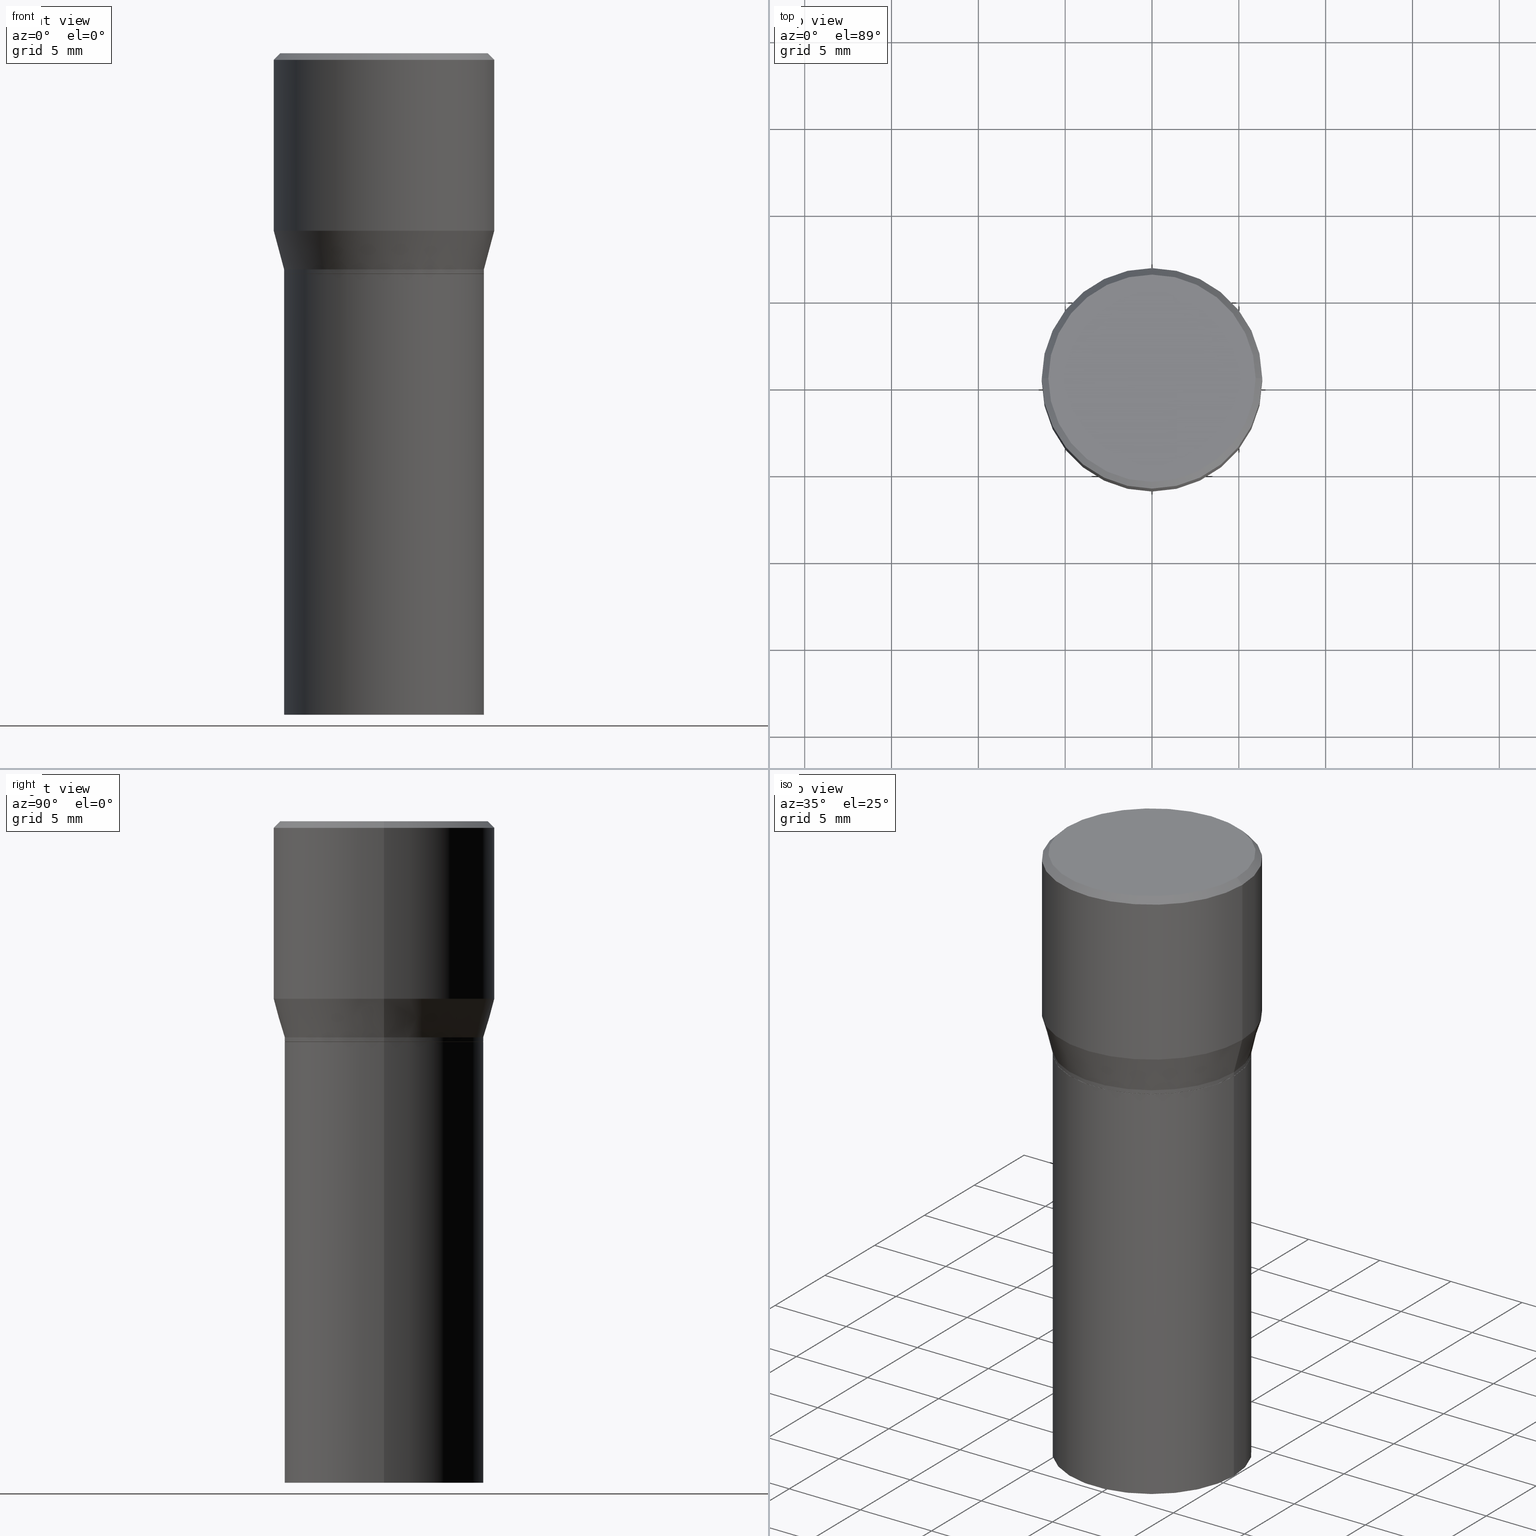
[diagram: canonical four-view strip — front | top / right | iso, engineering-drawing reading convention]
A machine part, canonical four-view strip (front | top / right | iso — engineering-drawing reading convention). The complete STEP part file that produces these views, byte-faithful:
ISO-10303-21;
HEADER;
FILE_DESCRIPTION (( 'STEP AP203' ),
    '1' );
FILE_NAME ('30357.STEP',
    '2024-03-13T16:08:52',
    ( '' ),
    ( '' ),
    'SwSTEP 2.0',
    'SolidWorks 2023',
    '' );
FILE_SCHEMA (( 'CONFIG_CONTROL_DESIGN' ));
ENDSEC;

DATA;
#1 = CARTESIAN_POINT ( 'NONE',  ( 1.198279715030717173E-29, -1.710825856033141537E-15, -0.4900000000000001021 ) ) ;
#2 = ORIENTED_EDGE ( 'NONE', *, *, #431, .F. ) ;
#3 = FACE_OUTER_BOUND ( 'NONE', #372, .T. ) ;
#4 = CARTESIAN_POINT ( 'NONE',  ( -0.2500000000000000000, 1.776356839400250465E-15, -1.229733772563726445E-29 ) ) ;
#5 = DIRECTION ( 'NONE',  ( 1.000000000000000000, -6.982962677686266711E-15, 0.000000000000000000 ) ) ;
#6 = DIRECTION ( 'NONE',  ( -1.000000000000000000, 6.982962677686265922E-15, -4.876176775795935793E-29 ) ) ;
#7 = APPLICATION_PROTOCOL_DEFINITION ( 'international standard', 'config_control_design', 1994, #17 ) ;
#8 = AXIS2_PLACEMENT_3D ( 'NONE', #211, #246, #150 ) ;
#9 = DIRECTION ( 'NONE',  ( 1.000000000000000000, -6.982962677686266711E-15, 4.876176775795935793E-29 ) ) ;
#10 = CIRCLE ( 'NONE', #154, 0.2265500000000000014 ) ;
#11 = VECTOR ( 'NONE', #360, 39.37007874015748143 ) ;
#12 = EDGE_CURVE ( 'NONE', #85, #419, #10, .T. ) ;
#13 =( LENGTH_UNIT ( ) NAMED_UNIT ( * ) SI_UNIT ( $, .METRE. ) );
#14 = ORIENTED_EDGE ( 'NONE', *, *, #337, .F. ) ;
#15 = ORIENTED_EDGE ( 'NONE', *, *, #183, .T. ) ;
#16 = AXIS2_PLACEMENT_3D ( 'NONE', #111, #72, #177 ) ;
#17 = APPLICATION_CONTEXT ( 'configuration controlled 3d designs of mechanical parts and assemblies' ) ;
#18 = DIRECTION ( 'NONE',  ( 1.000000000000000000, -6.982962677686267499E-15, 0.000000000000000000 ) ) ;
#19 = ORIENTED_EDGE ( 'NONE', *, *, #442, .T. ) ;
#20 = DATE_AND_TIME ( #129, #449 ) ;
#21 = EDGE_LOOP ( 'NONE', ( #230, #267 ) ) ;
#22 = VECTOR ( 'NONE', #348, 39.37007874015748143 ) ;
#23 = EDGE_LOOP ( 'NONE', ( #50, #19, #336, #2 ) ) ;
#24 = APPROVAL ( #157, 'UNSPECIFIED' ) ;
#25 = ADVANCED_FACE ( 'NONE', ( #351 ), #126, .T. ) ;
#26 = CARTESIAN_POINT ( 'NONE',  ( 3.668203209277705088E-31, -5.237222008264718399E-17, -0.01499999999999999944 ) ) ;
#27 = ORIENTED_EDGE ( 'NONE', *, *, #183, .F. ) ;
#28 = AXIS2_PLACEMENT_3D ( 'NONE', #317, #424, #279 ) ;
#29 = CARTESIAN_POINT ( 'NONE',  ( 0.000000000000000000, 0.000000000000000000, 0.000000000000000000 ) ) ;
#30 = LINE ( 'NONE', #205, #326 ) ;
#31 = DIRECTION ( 'NONE',  ( 1.000000000000000000, -6.982962677686265922E-15, 0.000000000000000000 ) ) ;
#32 = CARTESIAN_POINT ( 'NONE',  ( 9.842606206466859638E-30, -1.405263310189985589E-15, -0.4024834085625100810 ) ) ;
#33 = DIRECTION ( 'NONE',  ( -2.445468806185136597E-29, 3.491481338843145583E-15, 1.000000000000000000 ) ) ;
#34 = MANIFOLD_SOLID_BREP ( 'Body-Move/Copy2[2]', #65 ) ;
#35 = FACE_OUTER_BOUND ( 'NONE', #283, .T. ) ;
#36 = DIRECTION ( 'NONE',  ( 1.000000000000000000, -6.982962677686266711E-15, 0.000000000000000000 ) ) ;
#37 = CARTESIAN_POINT ( 'NONE',  ( 1.198279715030717173E-29, -1.710825856033141537E-15, -0.4900000000000001021 ) ) ;
#38 = AXIS2_PLACEMENT_3D ( 'NONE', #401, #118, #49 ) ;
#39 = CARTESIAN_POINT ( 'NONE',  ( 0.000000000000000000, 0.000000000000000000, 0.000000000000000000 ) ) ;
#40 = DIRECTION ( 'NONE',  ( 1.000000000000000000, -6.982962677686265922E-15, 0.000000000000000000 ) ) ;
#41 = PERSON ( 'UNSPECIFIED', 'UNSPECIFIED', 'UNSPECIFIED', ('UNSPECIFIED'), ('UNSPECIFIED'), ('UNSPECIFIED') ) ;
#42 =( CONVERSION_BASED_UNIT ( 'INCH', #439 ) LENGTH_UNIT ( ) NAMED_UNIT ( #454 ) );
#43 = CARTESIAN_POINT ( 'NONE',  ( -0.2260500000000000009, -1.395588152358667583E-16, -0.5000000000000001110 ) ) ;
#44 = DIRECTION ( 'NONE',  ( 0.2588190451025214611, 1.565188264969621573E-15, 0.9659258262890682012 ) ) ;
#45 = ADVANCED_FACE ( 'NONE', ( #168 ), #253, .T. ) ;
#46 = VERTEX_POINT ( 'NONE', #277 ) ;
#47 = EDGE_CURVE ( 'NONE', #194, #125, #282, .T. ) ;
#48 = VECTOR ( 'NONE', #75, 39.37007874015748143 ) ;
#49 = DIRECTION ( 'NONE',  ( 1.000000000000000000, 0.000000000000000000, 0.000000000000000000 ) ) ;
#50 = ORIENTED_EDGE ( 'NONE', *, *, #101, .F. ) ;
#51 = VERTEX_POINT ( 'NONE', #258 ) ;
#52 = VECTOR ( 'NONE', #104, 39.37007874015748143 ) ;
#53 = ADVANCED_FACE ( 'NONE', ( #289 ), #255, .T. ) ;
#54 = AXIS2_PLACEMENT_3D ( 'NONE', #26, #164, #380 ) ;
#55 = PERSON_AND_ORGANIZATION_ROLE ( 'creator' ) ;
#56 = AXIS2_PLACEMENT_3D ( 'NONE', #229, #223, #432 ) ;
#57 = ORIENTED_EDGE ( 'NONE', *, *, #93, .T. ) ;
#58 = ADVANCED_FACE ( 'NONE', ( #341 ), #306, .T. ) ;
#59 = DIRECTION ( 'NONE',  ( -2.438088387897960049E-29, 3.491481338843145188E-15, 1.000000000000000000 ) ) ;
#60 = CARTESIAN_POINT ( 'NONE',  ( 0.2265499999999999736, -3.292816050662964671E-15, -0.4900000000000001021 ) ) ;
#61 = AXIS2_PLACEMENT_3D ( 'NONE', #354, #389, #5 ) ;
#62 = CC_DESIGN_PERSON_AND_ORGANIZATION_ASSIGNMENT ( #328, #364, ( #305 ) ) ;
#63 = CARTESIAN_POINT ( 'NONE',  ( 0.2349999999999999867, -1.689856874500919833E-15, 1.568636843340994368E-16 ) ) ;
#64 = VERTEX_POINT ( 'NONE', #60 ) ;
#65 = CLOSED_SHELL ( 'NONE', ( #82, #25, #188, #269, #45, #376, #191, #58, #162, #227, #175, #413 ) ) ;
#66 = LINE ( 'NONE', #285, #52 ) ;
#67 = ORIENTED_EDGE ( 'NONE', *, *, #431, .T. ) ;
#68 = AXIS2_PLACEMENT_3D ( 'NONE', #77, #222, #6 ) ;
#69 = DIRECTION ( 'NONE',  ( -2.445468806185136597E-29, 3.491481338843145583E-15, 1.000000000000000000 ) ) ;
#70 = LINE ( 'NONE', #417, #22 ) ;
#71 = ORIENTED_EDGE ( 'NONE', *, *, #113, .T. ) ;
#72 = DIRECTION ( 'NONE',  ( 2.445468806185136597E-29, -3.491481338843145583E-15, -1.000000000000000000 ) ) ;
#73 = CARTESIAN_POINT ( 'NONE',  ( -0.2265500000000000014, -1.342603608876448985E-16, -0.4995000000000001661 ) ) ;
#74 = AXIS2_PLACEMENT_3D ( 'NONE', #382, #288, #384 ) ;
#75 = DIRECTION ( 'NONE',  ( -2.445468806185136877E-29, 3.491481338843145188E-15, 1.000000000000000000 ) ) ;
#76 = DIRECTION ( 'NONE',  ( 1.000000000000000000, -6.982962677686265922E-15, 0.000000000000000000 ) ) ;
#77 = CARTESIAN_POINT ( 'NONE',  ( 1.640996229256272519E-15, 0.2349999999999999867, -7.420662724610952803E-16 ) ) ;
#78 = CALENDAR_DATE ( 2024, 13, 3 ) ;
#79 = EDGE_CURVE ( 'NONE', #273, #64, #30, .T. ) ;
#80 = CARTESIAN_POINT ( 'NONE',  ( -0.2265500000000000014, 1.609734567864506981E-15, -1.114384744697248863E-29 ) ) ;
#81 = COORDINATED_UNIVERSAL_TIME_OFFSET ( 5, 0, .BEHIND. ) ;
#82 = ADVANCED_FACE ( 'NONE', ( #460 ), #142, .T. ) ;
#83 = LOCAL_TIME ( 12, 8, 52.00000000000000000, #81 ) ;
#84 = DIRECTION ( 'NONE',  ( -2.445468806185136597E-29, 3.491481338843145583E-15, 1.000000000000000000 ) ) ;
#85 = VERTEX_POINT ( 'NONE', #422 ) ;
#86 = COORDINATED_UNIVERSAL_TIME_OFFSET ( 5, 0, .BEHIND. ) ;
#87 = DATE_AND_TIME ( #307, #377 ) ;
#88 = DIRECTION ( 'NONE',  ( 1.000000000000000000, -6.982962677686265922E-15, 0.000000000000000000 ) ) ;
#89 = EDGE_LOOP ( 'NONE', ( #179, #160, #342, #318 ) ) ;
#90 = AXIS2_PLACEMENT_3D ( 'NONE', #297, #366, #76 ) ;
#91 = AXIS2_PLACEMENT_3D ( 'NONE', #350, #387, #204 ) ;
#92 = SHAPE_DEFINITION_REPRESENTATION ( #245, #203 ) ;
#93 = EDGE_CURVE ( 'NONE', #215, #194, #434, .T. ) ;
#94 = ORIENTED_EDGE ( 'NONE', *, *, #314, .F. ) ;
#95 = EDGE_CURVE ( 'NONE', #411, #330, #294, .T. ) ;
#96 = AXIS2_PLACEMENT_3D ( 'NONE', #221, #84, #18 ) ;
#97 = PERSON_AND_ORGANIZATION ( #41, #383 ) ;
#98 = AXIS2_PLACEMENT_3D ( 'NONE', #1, #286, #355 ) ;
#99 = DIRECTION ( 'NONE',  ( -2.438088387897960049E-29, 3.491481338843145188E-15, 1.000000000000000000 ) ) ;
#100 = EDGE_LOOP ( 'NONE', ( #236, #339, #301, #233 ) ) ;
#101 = EDGE_CURVE ( 'NONE', #238, #419, #428, .T. ) ;
#102 = CARTESIAN_POINT ( 'NONE',  ( 3.668203209277704895E-29, -5.237222008264718177E-15, -1.500000000000000222 ) ) ;
#103 = ORIENTED_EDGE ( 'NONE', *, *, #47, .T. ) ;
#104 = DIRECTION ( 'NONE',  ( -0.7071067811865441310, 2.468850131082221167E-15, -0.7071067811865509034 ) ) ;
#105 = ORIENTED_EDGE ( 'NONE', *, *, #220, .F. ) ;
#106 = CARTESIAN_POINT ( 'NONE',  ( 9.842606206466859638E-30, -1.405263310189985589E-15, -0.4024834085625100810 ) ) ;
#107 = DIRECTION ( 'NONE',  ( -2.445468806185136597E-29, 3.491481338843145583E-15, 1.000000000000000000 ) ) ;
#108 = CARTESIAN_POINT ( 'NONE',  ( 1.222734403092568719E-29, -1.745740669421573186E-15, -0.5000000000000001110 ) ) ;
#109 = CC_DESIGN_PERSON_AND_ORGANIZATION_ASSIGNMENT ( #268, #239, ( #397 ) ) ;
#110 = CARTESIAN_POINT ( 'NONE',  ( 0.2500000000000000000, -1.745740669421566678E-15, 1.219044193948983948E-29 ) ) ;
#111 = CARTESIAN_POINT ( 'NONE',  ( 3.668203209277705088E-31, -5.237222008264718399E-17, -0.01499999999999999944 ) ) ;
#112 = CYLINDRICAL_SURFACE ( 'NONE', #331, 0.2265500000000000014 ) ;
#113 = EDGE_CURVE ( 'NONE', #330, #215, #256, .T. ) ;
#114 = UNCERTAINTY_MEASURE_WITH_UNIT (LENGTH_MEASURE( 1.000000000000000082E-05 ), #42, 'distance_accuracy_value', 'NONE');
#115 = DATE_AND_TIME ( #395, #83 ) ;
#116 = AXIS2_PLACEMENT_3D ( 'NONE', #214, #59, #178 ) ;
#117 = FACE_OUTER_BOUND ( 'NONE', #209, .T. ) ;
#118 = DIRECTION ( 'NONE',  ( 0.000000000000000000, 0.000000000000000000, 1.000000000000000000 ) ) ;
#119 = CALENDAR_DATE ( 2024, 13, 3 ) ;
#120 = DIRECTION ( 'NONE',  ( -0.7071067811865715536, 7.493145998870439357E-15, 0.7071067811865232589 ) ) ;
#121 = AXIS2_PLACEMENT_3D ( 'NONE', #139, #378, #163 ) ;
#122 = EDGE_LOOP ( 'NONE', ( #197, #71, #105, #130 ) ) ;
#123 = APPROVAL_DATE_TIME ( #115, #436 ) ;
#124 = PRODUCT_RELATED_PRODUCT_CATEGORY ( 'detail', '', ( #347 ) ) ;
#125 = VERTEX_POINT ( 'NONE', #332 ) ;
#126 = CONICAL_SURFACE ( 'NONE', #131, 0.2260500000000000009, 0.7853981633974824739 ) ;
#127 = VERTEX_POINT ( 'NONE', #299 ) ;
#128 = EDGE_CURVE ( 'NONE', #310, #190, #393, .T. ) ;
#129 = CALENDAR_DATE ( 2024, 13, 3 ) ;
#130 = ORIENTED_EDGE ( 'NONE', *, *, #79, .F. ) ;
#131 = AXIS2_PLACEMENT_3D ( 'NONE', #108, #33, #36 ) ;
#132 = CIRCLE ( 'NONE', #386, 0.2500000000000000000 ) ;
#133 = EDGE_CURVE ( 'NONE', #215, #64, #452, .T. ) ;
#134 = PERSON_AND_ORGANIZATION_ROLE ( 'classification_officer' ) ;
#135 = CIRCLE ( 'NONE', #176, 0.2265500000000000014 ) ;
#136 = DIRECTION ( 'NONE',  ( -2.445468806185136597E-29, 3.491481338843145583E-15, 1.000000000000000000 ) ) ;
#137 = EDGE_LOOP ( 'NONE', ( #445, #212, #402, #14 ) ) ;
#138 = EDGE_CURVE ( 'NONE', #190, #125, #132, .T. ) ;
#139 = CARTESIAN_POINT ( 'NONE',  ( 1.222734403092568719E-29, -1.745740669421573186E-15, -0.5000000000000001110 ) ) ;
#140 = CARTESIAN_POINT ( 'NONE',  ( 1.222734403092568719E-29, -1.745740669421573186E-15, -0.5000000000000001110 ) ) ;
#141 = FACE_OUTER_BOUND ( 'NONE', #137, .T. ) ;
#142 = CYLINDRICAL_SURFACE ( 'NONE', #242, 0.2265500000000000014 ) ;
#143 = FACE_OUTER_BOUND ( 'NONE', #321, .T. ) ;
#144 = ORIENTED_EDGE ( 'NONE', *, *, #128, .T. ) ;
#145 = LOCAL_TIME ( 12, 8, 52.00000000000000000, #86 ) ;
#146 = PLANE ( 'NONE',  #116 ) ;
#147 = EDGE_LOOP ( 'NONE', ( #202, #165, #270, #156 ) ) ;
#148 = EDGE_CURVE ( 'NONE', #46, #190, #334, .T. ) ;
#149 = CYLINDRICAL_SURFACE ( 'NONE', #448, 0.2265500000000000014 ) ;
#150 = DIRECTION ( 'NONE',  ( 1.000000000000000000, -6.982962677686267499E-15, 4.878549297894958458E-29 ) ) ;
#151 = CIRCLE ( 'NONE', #61, 0.2500000000000000000 ) ;
#152 = APPROVAL_ROLE ( '' ) ;
#153 = EDGE_CURVE ( 'NONE', #127, #273, #219, .T. ) ;
#154 = AXIS2_PLACEMENT_3D ( 'NONE', #458, #349, #247 ) ;
#155 = PERSON_AND_ORGANIZATION ( #41, #383 ) ;
#156 = ORIENTED_EDGE ( 'NONE', *, *, #153, .F. ) ;
#157 = APPROVAL_STATUS ( 'not_yet_approved' ) ;
#158 = ORIENTED_EDGE ( 'NONE', *, *, #423, .T. ) ;
#159 = VECTOR ( 'NONE', #192, 39.37007874015748143 ) ;
#160 = ORIENTED_EDGE ( 'NONE', *, *, #337, .T. ) ;
#161 = CIRCLE ( 'NONE', #216, 0.2265500000000000014 ) ;
#162 = ADVANCED_FACE ( 'NONE', ( #117 ), #261, .F. ) ;
#163 = DIRECTION ( 'NONE',  ( 1.000000000000000000, -6.982962677686266711E-15, 0.000000000000000000 ) ) ;
#164 = DIRECTION ( 'NONE',  ( 2.445468806185136597E-29, -3.491481338843145583E-15, -1.000000000000000000 ) ) ;
#165 = ORIENTED_EDGE ( 'NONE', *, *, #95, .T. ) ;
#166 = CIRCLE ( 'NONE', #296, 0.2265499999999999736 ) ;
#167 = FACE_OUTER_BOUND ( 'NONE', #21, .T. ) ;
#168 = FACE_OUTER_BOUND ( 'NONE', #385, .T. ) ;
#169 = ORIENTED_EDGE ( 'NONE', *, *, #213, .F. ) ;
#170 = PLANE ( 'NONE',  #421 ) ;
#171 = DIRECTION ( 'NONE',  ( -2.445468806185136597E-29, 3.491481338843145583E-15, 1.000000000000000000 ) ) ;
#172 = DIRECTION ( 'NONE',  ( -2.445468806185136597E-29, 3.491481338843145583E-15, 1.000000000000000000 ) ) ;
#173 = CARTESIAN_POINT ( 'NONE',  ( 1.221511668689476057E-29, -1.743994928752151682E-15, -0.4995000000000001661 ) ) ;
#174 = ORIENTED_EDGE ( 'NONE', *, *, #95, .F. ) ;
#175 = ADVANCED_FACE ( 'NONE', ( #396 ), #327, .T. ) ;
#176 = AXIS2_PLACEMENT_3D ( 'NONE', #173, #107, #344 ) ;
#177 = DIRECTION ( 'NONE',  ( -1.000000000000000000, 6.982962677686266711E-15, 0.000000000000000000 ) ) ;
#178 = DIRECTION ( 'NONE',  ( 1.000000000000000000, -6.982962677686265922E-15, 4.876176775795935793E-29 ) ) ;
#179 = ORIENTED_EDGE ( 'NONE', *, *, #47, .F. ) ;
#180 = DIRECTION ( 'NONE',  ( -2.445468806185136597E-29, 3.491481338843145583E-15, 1.000000000000000000 ) ) ;
#181 = CARTESIAN_POINT ( 'NONE',  ( 0.2260500000000000009, -3.324239382712553708E-15, -0.5000000000000001110 ) ) ;
#182 = MANIFOLD_SOLID_BREP ( 'Body-Move/Copy2[1]', #400 ) ;
#183 = EDGE_CURVE ( 'NONE', #46, #194, #210, .T. ) ;
#184 = CIRCLE ( 'NONE', #121, 0.2260500000000000009 ) ;
#185 =( NAMED_UNIT ( * ) SI_UNIT ( $, .STERADIAN. ) SOLID_ANGLE_UNIT ( ) );
#186 = VECTOR ( 'NONE', #391, 39.37007874015748143 ) ;
#187 = ORIENTED_EDGE ( 'NONE', *, *, #213, .T. ) ;
#188 = ADVANCED_FACE ( 'NONE', ( #353 ), #365, .T. ) ;
#189 = APPLICATION_PROTOCOL_DEFINITION ( 'international standard', 'config_control_design', 1994, #278 ) ;
#190 = VERTEX_POINT ( 'NONE', #207 ) ;
#191 = ADVANCED_FACE ( 'NONE', ( #217 ), #358, .T. ) ;
#192 = DIRECTION ( 'NONE',  ( -2.445468806185136877E-29, 3.491481338843145188E-15, 1.000000000000000000 ) ) ;
#193 = CIRCLE ( 'NONE', #284, 0.2500000000000000000 ) ;
#194 = VERTEX_POINT ( 'NONE', #249 ) ;
#195 = ORIENTED_EDGE ( 'NONE', *, *, #79, .T. ) ;
#196 = PERSON_AND_ORGANIZATION ( #41, #383 ) ;
#197 = ORIENTED_EDGE ( 'NONE', *, *, #394, .T. ) ;
#198 = APPROVAL_PERSON_ORGANIZATION ( #155, #272, #435 ) ;
#199 = ORIENTED_EDGE ( 'NONE', *, *, #259, .T. ) ;
#200 = CC_DESIGN_DATE_AND_TIME_ASSIGNMENT ( #87, #241, ( #319 ) ) ;
#201 = CARTESIAN_POINT ( 'NONE',  ( -0.2265499999999999736, 1.350011205208151600E-16, -0.4900000000000001021 ) ) ;
#202 = ORIENTED_EDGE ( 'NONE', *, *, #408, .T. ) ;
#203 = ADVANCED_BREP_SHAPE_REPRESENTATION ( '30357', ( #182, #34, #38 ), #303 ) ;
#204 = DIRECTION ( 'NONE',  ( 1.000000000000000000, -6.982962677686267499E-15, 4.878549297894958458E-29 ) ) ;
#205 = CARTESIAN_POINT ( 'NONE',  ( 0.2265500000000000014, -1.581990194629823726E-15, 1.104697848556569281E-29 ) ) ;
#206 = FACE_OUTER_BOUND ( 'NONE', #333, .T. ) ;
#207 = CARTESIAN_POINT ( 'NONE',  ( 0.2500000000000000000, -1.798112889504214151E-15, -0.01499999999999999944 ) ) ;
#208 = CARTESIAN_POINT ( 'NONE',  ( -0.2265500000000000014, -1.881746770978639193E-15, -1.500000000000000222 ) ) ;
#209 = EDGE_LOOP ( 'NONE', ( #369, #329 ) ) ;
#210 = CIRCLE ( 'NONE', #240, 0.2500000000000000000 ) ;
#211 = CARTESIAN_POINT ( 'NONE',  ( -3.836052468622837406E-45, 5.476866265946494270E-31, 1.568636843340877764E-16 ) ) ;
#212 = ORIENTED_EDGE ( 'NONE', *, *, #133, .T. ) ;
#213 = EDGE_CURVE ( 'NONE', #411, #127, #184, .T. ) ;
#214 = CARTESIAN_POINT ( 'NONE',  ( 3.576687321579069994E-29, -5.368277968210015545E-15, -1.500000000000000222 ) ) ;
#215 = VERTEX_POINT ( 'NONE', #201 ) ;
#216 = AXIS2_PLACEMENT_3D ( 'NONE', #102, #171, #359 ) ;
#217 = FACE_OUTER_BOUND ( 'NONE', #89, .T. ) ;
#218 = DIRECTION ( 'NONE',  ( -2.445468806185136597E-29, 3.491481338843145583E-15, 1.000000000000000000 ) ) ;
#219 = LINE ( 'NONE', #181, #409 ) ;
#220 = EDGE_CURVE ( 'NONE', #64, #215, #166, .T. ) ;
#221 = CARTESIAN_POINT ( 'NONE',  ( 3.668203209277704895E-29, -5.237222008264718177E-15, -1.500000000000000222 ) ) ;
#222 = DIRECTION ( 'NONE',  ( 2.438088387897960049E-29, -3.491481338843145188E-15, -1.000000000000000000 ) ) ;
#223 = DIRECTION ( 'NONE',  ( -2.445468806185136597E-29, 3.491481338843145583E-15, 1.000000000000000000 ) ) ;
#224 = CIRCLE ( 'NONE', #96, 0.2265500000000000014 ) ;
#225 = APPROVAL_STATUS ( 'not_yet_approved' ) ;
#226 = CARTESIAN_POINT ( 'NONE',  ( -0.2265499999999999736, -1.010912881686348269E-16, -0.4900000000000001021 ) ) ;
#227 = ADVANCED_FACE ( 'NONE', ( #206 ), #170, .F. ) ;
#228 = CC_DESIGN_SECURITY_CLASSIFICATION ( #319, ( #397 ) ) ;
#229 = CARTESIAN_POINT ( 'NONE',  ( 1.222734403092568719E-29, -1.745740669421573186E-15, -0.5000000000000001110 ) ) ;
#230 = ORIENTED_EDGE ( 'NONE', *, *, #259, .F. ) ;
#231 = EDGE_CURVE ( 'NONE', #51, #85, #70, .T. ) ;
#232 =( NAMED_UNIT ( * ) PLANE_ANGLE_UNIT ( ) SI_UNIT ( $, .RADIAN. ) );
#233 = ORIENTED_EDGE ( 'NONE', *, *, #250, .T. ) ;
#234 = DIRECTION ( 'NONE',  ( 1.000000000000000000, -6.982962677686266711E-15, 0.000000000000000000 ) ) ;
#235 = CIRCLE ( 'NONE', #28, 0.2260500000000000009 ) ;
#236 = ORIENTED_EDGE ( 'NONE', *, *, #128, .F. ) ;
#237 = CC_DESIGN_PERSON_AND_ORGANIZATION_ASSIGNMENT ( #262, #368, ( #347 ) ) ;
#238 = VERTEX_POINT ( 'NONE', #208 ) ;
#239 = PERSON_AND_ORGANIZATION_ROLE ( 'design_supplier' ) ;
#240 = AXIS2_PLACEMENT_3D ( 'NONE', #106, #69, #31 ) ;
#241 = DATE_TIME_ROLE ( 'classification_date' ) ;
#242 = AXIS2_PLACEMENT_3D ( 'NONE', #280, #418, #316 ) ;
#243 = CARTESIAN_POINT ( 'NONE',  ( 0.000000000000000000, 0.000000000000000000, 0.000000000000000000 ) ) ;
#244 = DIRECTION ( 'NONE',  ( 1.000000000000000000, -6.982962677686265922E-15, 0.000000000000000000 ) ) ;
#245 = PRODUCT_DEFINITION_SHAPE ( 'NONE', 'NONE',  #305 ) ;
#246 = DIRECTION ( 'NONE',  ( -2.445468806185136597E-29, 3.491481338843145583E-15, 1.000000000000000000 ) ) ;
#247 = DIRECTION ( 'NONE',  ( 1.000000000000000000, -6.982962677686266711E-15, 0.000000000000000000 ) ) ;
#248 = CIRCLE ( 'NONE', #90, 0.2265500000000000014 ) ;
#249 = CARTESIAN_POINT ( 'NONE',  ( -0.2500000000000000000, 3.710935292102651716E-16, -0.4024834085625100810 ) ) ;
#250 = EDGE_CURVE ( 'NONE', #125, #190, #151, .T. ) ;
#251 = CARTESIAN_POINT ( 'NONE',  ( 0.000000000000000000, 0.000000000000000000, 0.000000000000000000 ) ) ;
#252 = ORIENTED_EDGE ( 'NONE', *, *, #138, .T. ) ;
#253 = CONICAL_SURFACE ( 'NONE', #98, 0.2265499999999999736, 0.2617993877991501295 ) ;
#254 = DIRECTION ( 'NONE',  ( 1.000000000000000000, -6.982962677686266711E-15, 4.876176775795935793E-29 ) ) ;
#255 = CYLINDRICAL_SURFACE ( 'NONE', #361, 0.2265500000000000014 ) ;
#256 = LINE ( 'NONE', #298, #415 ) ;
#257 = DIRECTION ( 'NONE',  ( 1.000000000000000000, -6.982962677686265922E-15, 4.876176775795935793E-29 ) ) ;
#258 = CARTESIAN_POINT ( 'NONE',  ( 0.2265500000000000014, -6.819212202894542298E-15, -1.500000000000000222 ) ) ;
#259 = EDGE_CURVE ( 'NONE', #51, #238, #161, .T. ) ;
#260 = DATE_AND_TIME ( #78, #145 ) ;
#261 = PLANE ( 'NONE',  #68 ) ;
#262 = PERSON_AND_ORGANIZATION ( #41, #383 ) ;
#263 = MECHANICAL_CONTEXT ( 'NONE', #17, 'mechanical' ) ;
#264 = ADVANCED_FACE ( 'NONE', ( #315 ), #426, .F. ) ;
#265 = CC_DESIGN_APPROVAL ( #272, ( #397 ) ) ;
#266 = DATE_AND_TIME ( #119, #466 ) ;
#267 = ORIENTED_EDGE ( 'NONE', *, *, #442, .F. ) ;
#268 = PERSON_AND_ORGANIZATION ( #41, #383 ) ;
#269 = ADVANCED_FACE ( 'NONE', ( #143 ), #462, .T. ) ;
#270 = ORIENTED_EDGE ( 'NONE', *, *, #394, .F. ) ;
#271 = AXIS2_PLACEMENT_3D ( 'NONE', #444, #404, #88 ) ;
#272 = APPROVAL ( #225, 'UNSPECIFIED' ) ;
#273 = VERTEX_POINT ( 'NONE', #465 ) ;
#274 = APPROVAL_ROLE ( '' ) ;
#275 = AXIS2_PLACEMENT_3D ( 'NONE', #243, #346, #461 ) ;
#276 = DIRECTION ( 'NONE',  ( 1.000000000000000000, -6.982962677686265922E-15, 0.000000000000000000 ) ) ;
#277 = CARTESIAN_POINT ( 'NONE',  ( 0.2500000000000000000, -3.151003979611552069E-15, -0.4024834085625100810 ) ) ;
#278 = APPLICATION_CONTEXT ( 'configuration controlled 3d designs of mechanical parts and assemblies' ) ;
#279 = DIRECTION ( 'NONE',  ( 1.000000000000000000, -6.982962677686266711E-15, 0.000000000000000000 ) ) ;
#280 = CARTESIAN_POINT ( 'NONE',  ( 0.000000000000000000, 0.000000000000000000, 0.000000000000000000 ) ) ;
#281 = CARTESIAN_POINT ( 'NONE',  ( 0.000000000000000000, 0.000000000000000000, 0.000000000000000000 ) ) ;
#282 = LINE ( 'NONE', #4, #48 ) ;
#283 = EDGE_LOOP ( 'NONE', ( #199, #437, #410, #407 ) ) ;
#284 = AXIS2_PLACEMENT_3D ( 'NONE', #32, #218, #40 ) ;
#285 = CARTESIAN_POINT ( 'NONE',  ( -0.2500000000000000000, 1.693368449338919401E-15, -0.01499999999999999944 ) ) ;
#286 = DIRECTION ( 'NONE',  ( -2.445468806185136597E-29, 3.491481338843145583E-15, 1.000000000000000000 ) ) ;
#287 = CARTESIAN_POINT ( 'NONE',  ( 3.668203209277705088E-31, -5.237222008264718399E-17, -0.01499999999999999944 ) ) ;
#288 = DIRECTION ( 'NONE',  ( 2.438088387897960049E-29, -3.491481338843145188E-15, -1.000000000000000000 ) ) ;
#289 = FACE_OUTER_BOUND ( 'NONE', #23, .T. ) ;
#290 = DIRECTION ( 'NONE',  ( 0.7071067811865715536, -2.468850131082509496E-15, 0.7071067811865232589 ) ) ;
#291 = CARTESIAN_POINT ( 'NONE',  ( 0.2265499999999999736, -3.292816050662964671E-15, -0.4900000000000001021 ) ) ;
#292 = EDGE_CURVE ( 'NONE', #345, #310, #457, .T. ) ;
#293 = COORDINATED_UNIVERSAL_TIME_OFFSET ( 5, 0, .BEHIND. ) ;
#294 = LINE ( 'NONE', #43, #425 ) ;
#295 = ORIENTED_EDGE ( 'NONE', *, *, #220, .T. ) ;
#296 = AXIS2_PLACEMENT_3D ( 'NONE', #455, #136, #276 ) ;
#297 = CARTESIAN_POINT ( 'NONE',  ( 1.221511668689476057E-29, -1.743994928752151682E-15, -0.4995000000000001661 ) ) ;
#298 = CARTESIAN_POINT ( 'NONE',  ( -0.2265500000000000014, 1.609734567864506981E-15, -1.114384744697248863E-29 ) ) ;
#299 = CARTESIAN_POINT ( 'NONE',  ( 0.2260500000000000009, -3.324239382712553708E-15, -0.5000000000000001110 ) ) ;
#300 = ORIENTED_EDGE ( 'NONE', *, *, #148, .F. ) ;
#301 = ORIENTED_EDGE ( 'NONE', *, *, #343, .T. ) ;
#302 = DESIGN_CONTEXT ( 'detailed design', #278, 'design' ) ;
#303 =( GEOMETRIC_REPRESENTATION_CONTEXT ( 3 ) GLOBAL_UNCERTAINTY_ASSIGNED_CONTEXT ( ( #114 ) ) GLOBAL_UNIT_ASSIGNED_CONTEXT ( ( #42, #232, #185 ) ) REPRESENTATION_CONTEXT ( 'NONE', 'WORKASPACE' ) );
#304 = EDGE_LOOP ( 'NONE', ( #94, #144, #252, #335 ) ) ;
#305 = PRODUCT_DEFINITION ( 'UNKNOWN', '', #397, #302 ) ;
#306 = CONICAL_SURFACE ( 'NONE', #54, 0.2500000000000000000, 0.7853981633974435050 ) ;
#307 = CALENDAR_DATE ( 2024, 13, 3 ) ;
#308 = ADVANCED_FACE ( 'NONE', ( #167 ), #146, .F. ) ;
#309 = EDGE_LOOP ( 'NONE', ( #374, #67 ) ) ;
#310 = VERTEX_POINT ( 'NONE', #63 ) ;
#311 = AXIS2_PLACEMENT_3D ( 'NONE', #140, #456, #416 ) ;
#312 = CARTESIAN_POINT ( 'NONE',  ( -0.2349999999999999867, 1.667182339297596256E-15, 1.568636843340762393E-16 ) ) ;
#313 = DIRECTION ( 'NONE',  ( -2.445468806185136877E-29, 3.491481338843145188E-15, 1.000000000000000000 ) ) ;
#314 = EDGE_CURVE ( 'NONE', #310, #345, #392, .T. ) ;
#315 = FACE_OUTER_BOUND ( 'NONE', #309, .T. ) ;
#316 = DIRECTION ( 'NONE',  ( 1.000000000000000000, -6.982962677686266711E-15, 4.876176775795935793E-29 ) ) ;
#317 = CARTESIAN_POINT ( 'NONE',  ( 1.222734403092568719E-29, -1.745740669421573186E-15, -0.5000000000000001110 ) ) ;
#318 = ORIENTED_EDGE ( 'NONE', *, *, #250, .F. ) ;
#319 = SECURITY_CLASSIFICATION ( '', '', #375 ) ;
#320 = CARTESIAN_POINT ( 'NONE',  ( -0.2260500000000000009, -1.369095880617559516E-16, -0.5000000000000001110 ) ) ;
#321 = EDGE_LOOP ( 'NONE', ( #15, #103, #453, #300 ) ) ;
#322 = CARTESIAN_POINT ( 'NONE',  ( 1.222734403092568719E-29, -1.745740669421573186E-15, -0.5000000000000001110 ) ) ;
#323 = PERSON_AND_ORGANIZATION ( #41, #383 ) ;
#324 = AXIS2_PLACEMENT_3D ( 'NONE', #37, #414, #244 ) ;
#325 = LINE ( 'NONE', #291, #356 ) ;
#326 = VECTOR ( 'NONE', #313, 39.37007874015748143 ) ;
#327 = CONICAL_SURFACE ( 'NONE', #311, 0.2260500000000000009, 0.7853981633974824739 ) ;
#328 = PERSON_AND_ORGANIZATION ( #41, #383 ) ;
#329 = ORIENTED_EDGE ( 'NONE', *, *, #314, .T. ) ;
#330 = VERTEX_POINT ( 'NONE', #73 ) ;
#331 = AXIS2_PLACEMENT_3D ( 'NONE', #251, #180, #254 ) ;
#332 = CARTESIAN_POINT ( 'NONE',  ( -0.2500000000000000000, 1.047539074263934229E-15, -0.01499999999999999944 ) ) ;
#333 = EDGE_LOOP ( 'NONE', ( #450, #169 ) ) ;
#334 = LINE ( 'NONE', #110, #186 ) ;
#335 = ORIENTED_EDGE ( 'NONE', *, *, #343, .F. ) ;
#336 = ORIENTED_EDGE ( 'NONE', *, *, #231, .T. ) ;
#337 = EDGE_CURVE ( 'NONE', #194, #46, #193, .T. ) ;
#338 = CC_DESIGN_APPROVAL ( #436, ( #305 ) ) ;
#339 = ORIENTED_EDGE ( 'NONE', *, *, #292, .F. ) ;
#340 = COORDINATED_UNIVERSAL_TIME_OFFSET ( 5, 0, .BEHIND. ) ;
#341 = FACE_OUTER_BOUND ( 'NONE', #100, .T. ) ;
#342 = ORIENTED_EDGE ( 'NONE', *, *, #148, .T. ) ;
#343 = EDGE_CURVE ( 'NONE', #345, #125, #66, .T. ) ;
#344 = DIRECTION ( 'NONE',  ( 1.000000000000000000, -6.982962677686265922E-15, 0.000000000000000000 ) ) ;
#345 = VERTEX_POINT ( 'NONE', #312 ) ;
#346 = DIRECTION ( 'NONE',  ( -2.445468806185136597E-29, 3.491481338843145583E-15, 1.000000000000000000 ) ) ;
#347 = PRODUCT ( '30357', '30357', '', ( #263 ) ) ;
#348 = DIRECTION ( 'NONE',  ( -2.445468806185136877E-29, 3.491481338843145188E-15, 1.000000000000000000 ) ) ;
#349 = DIRECTION ( 'NONE',  ( -2.445468806185136597E-29, 3.491481338843145583E-15, 1.000000000000000000 ) ) ;
#350 = CARTESIAN_POINT ( 'NONE',  ( -3.836052468622837406E-45, 5.476866265946494270E-31, 1.568636843340877764E-16 ) ) ;
#351 = FACE_OUTER_BOUND ( 'NONE', #147, .T. ) ;
#352 = CC_DESIGN_DATE_AND_TIME_ASSIGNMENT ( #260, #371, ( #305 ) ) ;
#353 = FACE_OUTER_BOUND ( 'NONE', #304, .T. ) ;
#354 = CARTESIAN_POINT ( 'NONE',  ( 3.668203209277705088E-31, -5.237222008264718399E-17, -0.01499999999999999944 ) ) ;
#355 = DIRECTION ( 'NONE',  ( 1.000000000000000000, -6.982962677686265922E-15, 0.000000000000000000 ) ) ;
#356 = VECTOR ( 'NONE', #44, 39.37007874015747433 ) ;
#357 = ADVANCED_FACE ( 'NONE', ( #35 ), #112, .T. ) ;
#358 = CYLINDRICAL_SURFACE ( 'NONE', #275, 0.2500000000000000000 ) ;
#359 = DIRECTION ( 'NONE',  ( 1.000000000000000000, -6.982962677686267499E-15, 0.000000000000000000 ) ) ;
#360 = DIRECTION ( 'NONE',  ( 0.7071067811865441310, -7.319954787623245001E-15, -0.7071067811865509034 ) ) ;
#361 = AXIS2_PLACEMENT_3D ( 'NONE', #39, #172, #388 ) ;
#362 = CARTESIAN_POINT ( 'NONE',  ( -0.2265500000000000014, -1.881746770978639193E-15, -0.5000000000000001110 ) ) ;
#363 = DIRECTION ( 'NONE',  ( -2.445468806185136877E-29, 3.491481338843145188E-15, 1.000000000000000000 ) ) ;
#364 = PERSON_AND_ORGANIZATION_ROLE ( 'creator' ) ;
#365 = CONICAL_SURFACE ( 'NONE', #16, 0.2500000000000000000, 0.7853981633974435050 ) ;
#366 = DIRECTION ( 'NONE',  ( -2.445468806185136597E-29, 3.491481338843145583E-15, 1.000000000000000000 ) ) ;
#367 = VECTOR ( 'NONE', #433, 39.37007874015747433 ) ;
#368 = PERSON_AND_ORGANIZATION_ROLE ( 'design_owner' ) ;
#369 = ORIENTED_EDGE ( 'NONE', *, *, #292, .T. ) ;
#370 = CC_DESIGN_PERSON_AND_ORGANIZATION_ASSIGNMENT ( #196, #55, ( #397 ) ) ;
#371 = DATE_TIME_ROLE ( 'creation_date' ) ;
#372 = EDGE_LOOP ( 'NONE', ( #446, #158, #195, #399 ) ) ;
#373 = COORDINATED_UNIVERSAL_TIME_OFFSET ( 5, 0, .BEHIND. ) ;
#374 = ORIENTED_EDGE ( 'NONE', *, *, #12, .T. ) ;
#375 = SECURITY_CLASSIFICATION_LEVEL ( 'unclassified' ) ;
#376 = ADVANCED_FACE ( 'NONE', ( #141 ), #405, .T. ) ;
#377 = LOCAL_TIME ( 12, 8, 52.00000000000000000, #340 ) ;
#378 = DIRECTION ( 'NONE',  ( -2.445468806185136597E-29, 3.491481338843145583E-15, 1.000000000000000000 ) ) ;
#379 = DIRECTION ( 'NONE',  ( 1.000000000000000000, -6.982962677686266711E-15, 4.876176775795935793E-29 ) ) ;
#380 = DIRECTION ( 'NONE',  ( -1.000000000000000000, 6.982962677686266711E-15, 0.000000000000000000 ) ) ;
#381 = ORIENTED_EDGE ( 'NONE', *, *, #423, .F. ) ;
#382 = CARTESIAN_POINT ( 'NONE',  ( 1.581990194629835559E-15, 0.2265499999999982528, -0.5000000000000009992 ) ) ;
#383 = ORGANIZATION ( 'UNSPECIFIED', 'UNSPECIFIED', '' ) ;
#384 = DIRECTION ( 'NONE',  ( -1.000000000000000000, 6.982962677686265922E-15, -4.876176775795935793E-29 ) ) ;
#385 = EDGE_LOOP ( 'NONE', ( #295, #57, #27, #443 ) ) ;
#386 = AXIS2_PLACEMENT_3D ( 'NONE', #287, #440, #234 ) ;
#387 = DIRECTION ( 'NONE',  ( -2.445468806185136597E-29, 3.491481338843145583E-15, 1.000000000000000000 ) ) ;
#388 = DIRECTION ( 'NONE',  ( 1.000000000000000000, -6.982962677686266711E-15, 4.876176775795935793E-29 ) ) ;
#389 = DIRECTION ( 'NONE',  ( -2.445468806185136597E-29, 3.491481338843145583E-15, 1.000000000000000000 ) ) ;
#390 = EDGE_LOOP ( 'NONE', ( #174, #187, #463, #381 ) ) ;
#391 = DIRECTION ( 'NONE',  ( -2.445468806185136877E-29, 3.491481338843145188E-15, 1.000000000000000000 ) ) ;
#392 = CIRCLE ( 'NONE', #91, 0.2349999999999999867 ) ;
#393 = LINE ( 'NONE', #429, #11 ) ;
#394 = EDGE_CURVE ( 'NONE', #273, #330, #135, .T. ) ;
#395 = CALENDAR_DATE ( 2024, 13, 3 ) ;
#396 = FACE_OUTER_BOUND ( 'NONE', #390, .T. ) ;
#397 = PRODUCT_DEFINITION_FORMATION_WITH_SPECIFIED_SOURCE ( 'ANY', '', #347, .NOT_KNOWN. ) ;
#398 = APPROVAL_DATE_TIME ( #266, #272 ) ;
#399 = ORIENTED_EDGE ( 'NONE', *, *, #133, .F. ) ;
#400 = CLOSED_SHELL ( 'NONE', ( #357, #308, #53, #264 ) ) ;
#401 = CARTESIAN_POINT ( 'NONE',  ( 0.000000000000000000, 0.000000000000000000, 0.000000000000000000 ) ) ;
#402 = ORIENTED_EDGE ( 'NONE', *, *, #464, .T. ) ;
#403 = PERSON_AND_ORGANIZATION ( #41, #383 ) ;
#404 = DIRECTION ( 'NONE',  ( -2.445468806185136597E-29, 3.491481338843145583E-15, 1.000000000000000000 ) ) ;
#405 = CONICAL_SURFACE ( 'NONE', #324, 0.2265499999999999736, 0.2617993877991501295 ) ;
#406 = APPROVAL_PERSON_ORGANIZATION ( #403, #24, #274 ) ;
#407 = ORIENTED_EDGE ( 'NONE', *, *, #231, .F. ) ;
#408 = EDGE_CURVE ( 'NONE', #127, #411, #235, .T. ) ;
#409 = VECTOR ( 'NONE', #290, 39.37007874015748854 ) ;
#410 = ORIENTED_EDGE ( 'NONE', *, *, #12, .F. ) ;
#411 = VERTEX_POINT ( 'NONE', #320 ) ;
#412 = APPROVAL_PERSON_ORGANIZATION ( #323, #436, #152 ) ;
#413 = ADVANCED_FACE ( 'NONE', ( #3 ), #149, .T. ) ;
#414 = DIRECTION ( 'NONE',  ( -2.445468806185136597E-29, 3.491481338843145583E-15, 1.000000000000000000 ) ) ;
#415 = VECTOR ( 'NONE', #363, 39.37007874015748143 ) ;
#416 = DIRECTION ( 'NONE',  ( 1.000000000000000000, -6.982962677686266711E-15, 0.000000000000000000 ) ) ;
#417 = CARTESIAN_POINT ( 'NONE',  ( 0.2265500000000000014, -1.581990194629823726E-15, 1.104697848556569281E-29 ) ) ;
#418 = DIRECTION ( 'NONE',  ( -2.445468806185136597E-29, 3.491481338843145583E-15, 1.000000000000000000 ) ) ;
#419 = VERTEX_POINT ( 'NONE', #362 ) ;
#420 = DIRECTION ( 'NONE',  ( -2.445468806185136597E-29, 3.491481338843145583E-15, 1.000000000000000000 ) ) ;
#421 = AXIS2_PLACEMENT_3D ( 'NONE', #322, #99, #257 ) ;
#422 = CARTESIAN_POINT ( 'NONE',  ( 0.2265500000000000014, -3.327730864051397109E-15, -0.5000000000000001110 ) ) ;
#423 = EDGE_CURVE ( 'NONE', #330, #273, #248, .T. ) ;
#424 = DIRECTION ( 'NONE',  ( -2.445468806185136597E-29, 3.491481338843145583E-15, 1.000000000000000000 ) ) ;
#425 = VECTOR ( 'NONE', #120, 39.37007874015748854 ) ;
#426 = PLANE ( 'NONE',  #74 ) ;
#427 = APPROVAL_STATUS ( 'not_yet_approved' ) ;
#428 = LINE ( 'NONE', #80, #159 ) ;
#429 = CARTESIAN_POINT ( 'NONE',  ( 0.2500000000000000000, -1.767496719525530167E-15, -0.01499999999999999944 ) ) ;
#430 = AXIS2_PLACEMENT_3D ( 'NONE', #281, #420, #379 ) ;
#431 = EDGE_CURVE ( 'NONE', #419, #85, #438, .T. ) ;
#432 = DIRECTION ( 'NONE',  ( 1.000000000000000000, -6.982962677686266711E-15, 0.000000000000000000 ) ) ;
#433 = DIRECTION ( 'NONE',  ( -0.2588190451025214611, 5.211531920934551042E-15, 0.9659258262890682012 ) ) ;
#434 = LINE ( 'NONE', #226, #367 ) ;
#435 = APPROVAL_ROLE ( '' ) ;
#436 = APPROVAL ( #427, 'UNSPECIFIED' ) ;
#437 = ORIENTED_EDGE ( 'NONE', *, *, #101, .T. ) ;
#438 = CIRCLE ( 'NONE', #56, 0.2265500000000000014 ) ;
#439 = LENGTH_MEASURE_WITH_UNIT ( LENGTH_MEASURE( 0.02539999999999999897 ), #13 );
#440 = DIRECTION ( 'NONE',  ( -2.445468806185136597E-29, 3.491481338843145583E-15, 1.000000000000000000 ) ) ;
#441 = CC_DESIGN_APPROVAL ( #24, ( #319 ) ) ;
#442 = EDGE_CURVE ( 'NONE', #238, #51, #224, .T. ) ;
#443 = ORIENTED_EDGE ( 'NONE', *, *, #464, .F. ) ;
#444 = CARTESIAN_POINT ( 'NONE',  ( 1.198279715030717173E-29, -1.710825856033141537E-15, -0.4900000000000001021 ) ) ;
#445 = ORIENTED_EDGE ( 'NONE', *, *, #93, .F. ) ;
#446 = ORIENTED_EDGE ( 'NONE', *, *, #113, .F. ) ;
#447 = CC_DESIGN_PERSON_AND_ORGANIZATION_ASSIGNMENT ( #97, #134, ( #319 ) ) ;
#448 = AXIS2_PLACEMENT_3D ( 'NONE', #29, #459, #9 ) ;
#449 = LOCAL_TIME ( 12, 8, 52.00000000000000000, #373 ) ;
#450 = ORIENTED_EDGE ( 'NONE', *, *, #408, .F. ) ;
#451 = APPROVAL_DATE_TIME ( #20, #24 ) ;
#452 = CIRCLE ( 'NONE', #271, 0.2265499999999999736 ) ;
#453 = ORIENTED_EDGE ( 'NONE', *, *, #138, .F. ) ;
#454 = DIMENSIONAL_EXPONENTS ( 1.000000000000000000, 0.000000000000000000, 0.000000000000000000, 0.000000000000000000, 0.000000000000000000, 0.000000000000000000, 0.000000000000000000 ) ;
#455 = CARTESIAN_POINT ( 'NONE',  ( 1.198279715030717173E-29, -1.710825856033141537E-15, -0.4900000000000001021 ) ) ;
#456 = DIRECTION ( 'NONE',  ( -2.445468806185136597E-29, 3.491481338843145583E-15, 1.000000000000000000 ) ) ;
#457 = CIRCLE ( 'NONE', #8, 0.2349999999999999867 ) ;
#458 = CARTESIAN_POINT ( 'NONE',  ( 1.222734403092568719E-29, -1.745740669421573186E-15, -0.5000000000000001110 ) ) ;
#459 = DIRECTION ( 'NONE',  ( -2.445468806185136597E-29, 3.491481338843145583E-15, 1.000000000000000000 ) ) ;
#460 = FACE_OUTER_BOUND ( 'NONE', #122, .T. ) ;
#461 = DIRECTION ( 'NONE',  ( 1.000000000000000000, -6.982962677686266711E-15, 4.876176775795935793E-29 ) ) ;
#462 = CYLINDRICAL_SURFACE ( 'NONE', #430, 0.2500000000000000000 ) ;
#463 = ORIENTED_EDGE ( 'NONE', *, *, #153, .T. ) ;
#464 = EDGE_CURVE ( 'NONE', #64, #46, #325, .T. ) ;
#465 = CARTESIAN_POINT ( 'NONE',  ( 0.2265500000000000014, -3.325985123381975211E-15, -0.4995000000000001661 ) ) ;
#466 = LOCAL_TIME ( 12, 8, 52.00000000000000000, #293 ) ;
ENDSEC;
END-ISO-10303-21;
